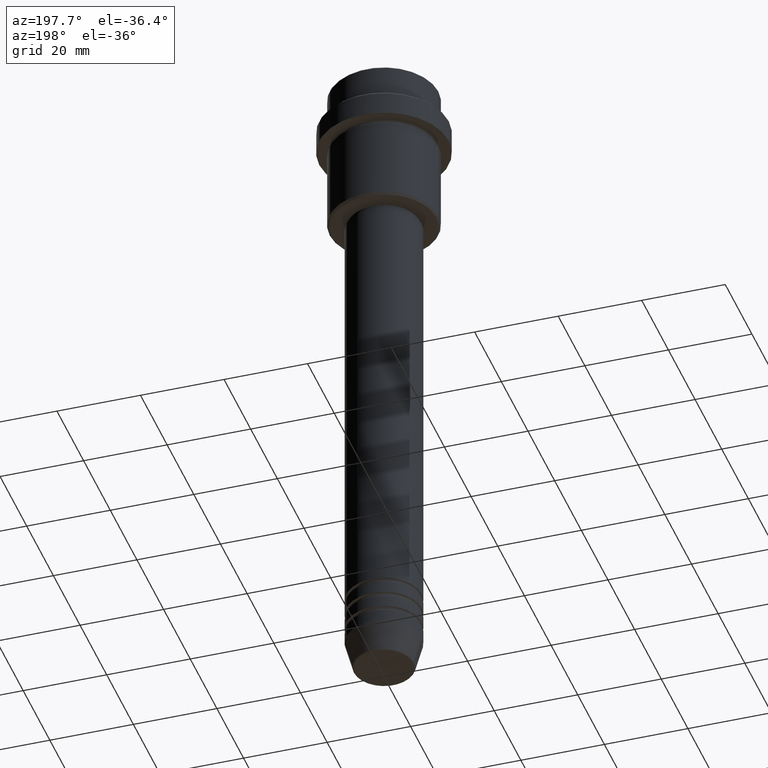
[diagram: clean part render]
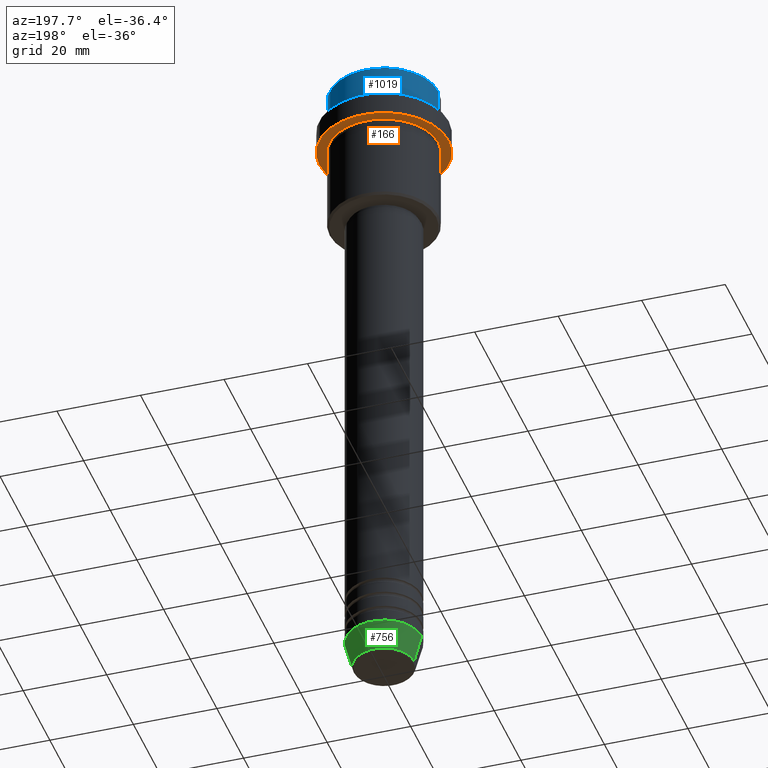
[diagram: same view with three faces highlighted in distinct colors, each labeled with its STEP entity id]
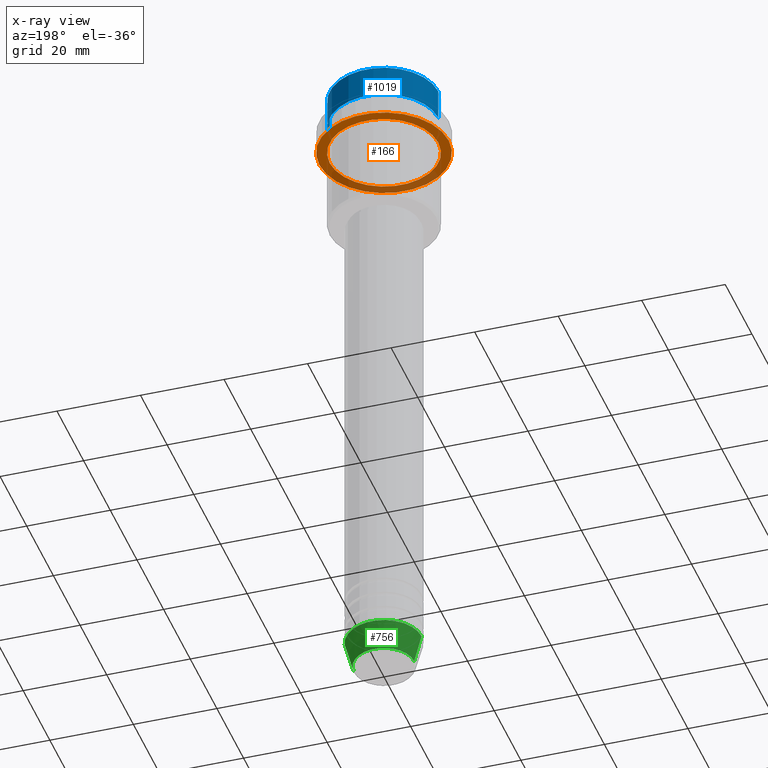
[diagram: x-ray of the same camera — body ghosted, the three highlighted faces saturated]
A machine part, auxiliary view with three faces highlighted in distinct colors.
The next image is the same camera in x-ray (body ghosted, the three faces saturated) — at least one of them is partly hidden behind the body in this view.
Their STEP definitions:

[orange] entity #166 — the highlighted planar face has unit normal (0, 0, -1).
#21 = CARTESIAN_POINT ( 'NONE',  ( 0.000000000000000000, 15.50000000000000000, -15.00000000000000000 ) ) ;
#29 = CIRCLE ( 'NONE', #822, 15.50000000000000000 ) ;
#45 = EDGE_CURVE ( 'NONE', #148, #1175, #29, .T. ) ;
#66 = VERTEX_POINT ( 'NONE', #1089 ) ;
#75 = ORIENTED_EDGE ( 'NONE', *, *, #939, .T. ) ;
#128 = EDGE_LOOP ( 'NONE', ( #75, #359 ) ) ;
#135 = CARTESIAN_POINT ( 'NONE',  ( -15.50000000000000000, 1.898202538678397557E-15, -15.00000000000000000 ) ) ;
#142 = ORIENTED_EDGE ( 'NONE', *, *, #516, .F. ) ;
#148 = VERTEX_POINT ( 'NONE', #135 ) ;
#159 = EDGE_LOOP ( 'NONE', ( #142, #187 ) ) ;
#166 = ADVANCED_FACE ( 'NONE', ( #990, #549 ), #663, .T. ) ;
#170 = DIRECTION ( 'NONE',  ( -1.000000000000000000, 0.000000000000000000, 0.000000000000000000 ) ) ;
#187 = ORIENTED_EDGE ( 'NONE', *, *, #45, .F. ) ;
#196 = AXIS2_PLACEMENT_3D ( 'NONE', #21, #1223, #785 ) ;
#200 = DIRECTION ( 'NONE',  ( -0.000000000000000000, -0.000000000000000000, 1.000000000000000000 ) ) ;
#243 = AXIS2_PLACEMENT_3D ( 'NONE', #303, #200, #529 ) ;
#260 = DIRECTION ( 'NONE',  ( -0.000000000000000000, -0.000000000000000000, 1.000000000000000000 ) ) ;
#284 = CARTESIAN_POINT ( 'NONE',  ( 0.000000000000000000, 0.000000000000000000, -15.00000000000000000 ) ) ;
#303 = CARTESIAN_POINT ( 'NONE',  ( 0.000000000000000000, 0.000000000000000000, -15.00000000000000000 ) ) ;
#341 = CARTESIAN_POINT ( 'NONE',  ( 15.50000000000000000, 0.000000000000000000, -15.00000000000000000 ) ) ;
#359 = ORIENTED_EDGE ( 'NONE', *, *, #434, .T. ) ;
#434 = EDGE_CURVE ( 'NONE', #66, #731, #1145, .T. ) ;
#496 = CARTESIAN_POINT ( 'NONE',  ( 0.000000000000000000, 0.000000000000000000, -15.00000000000000000 ) ) ;
#499 = DIRECTION ( 'NONE',  ( -0.000000000000000000, -0.000000000000000000, 1.000000000000000000 ) ) ;
#516 = EDGE_CURVE ( 'NONE', #1175, #148, #1106, .T. ) ;
#529 = DIRECTION ( 'NONE',  ( 1.000000000000000000, 0.000000000000000000, 0.000000000000000000 ) ) ;
#549 = FACE_OUTER_BOUND ( 'NONE', #159, .T. ) ;
#599 = CIRCLE ( 'NONE', #693, 12.99999999999999645 ) ;
#635 = CARTESIAN_POINT ( 'NONE',  ( -12.99999999999999645, 0.000000000000000000, -15.00000000000000000 ) ) ;
#663 = PLANE ( 'NONE',  #196 ) ;
#693 = AXIS2_PLACEMENT_3D ( 'NONE', #284, #499, #170 ) ;
#730 = DIRECTION ( 'NONE',  ( -0.000000000000000000, -0.000000000000000000, 1.000000000000000000 ) ) ;
#731 = VERTEX_POINT ( 'NONE', #635 ) ;
#785 = DIRECTION ( 'NONE',  ( -1.000000000000000000, 0.000000000000000000, -0.000000000000000000 ) ) ;
#822 = AXIS2_PLACEMENT_3D ( 'NONE', #1269, #730, #1291 ) ;
#939 = EDGE_CURVE ( 'NONE', #731, #66, #599, .T. ) ;
#990 = FACE_BOUND ( 'NONE', #128, .T. ) ;
#1025 = AXIS2_PLACEMENT_3D ( 'NONE', #496, #260, #1238 ) ;
#1089 = CARTESIAN_POINT ( 'NONE',  ( 12.99999999999999645, 1.592040838891558701E-15, -15.00000000000000000 ) ) ;
#1106 = CIRCLE ( 'NONE', #243, 15.50000000000000000 ) ;
#1145 = CIRCLE ( 'NONE', #1025, 12.99999999999999645 ) ;
#1175 = VERTEX_POINT ( 'NONE', #341 ) ;
#1223 = DIRECTION ( 'NONE',  ( 0.000000000000000000, 0.000000000000000000, -1.000000000000000000 ) ) ;
#1238 = DIRECTION ( 'NONE',  ( -1.000000000000000000, 0.000000000000000000, 0.000000000000000000 ) ) ;
#1269 = CARTESIAN_POINT ( 'NONE',  ( 0.000000000000000000, 0.000000000000000000, -15.00000000000000000 ) ) ;
#1291 = DIRECTION ( 'NONE',  ( 1.000000000000000000, 0.000000000000000000, 0.000000000000000000 ) ) ;

[blue] entity #1019 — the highlighted cylindrical surface (partial cylindrical patch) has radius 13 mm, axis along (-0, -0, 1).
#25 = ORIENTED_EDGE ( 'NONE', *, *, #505, .T. ) ;
#36 = CIRCLE ( 'NONE', #1215, 12.99999999999999822 ) ;
#77 = DIRECTION ( 'NONE',  ( 1.000000000000000000, 0.000000000000000000, 0.000000000000000000 ) ) ;
#81 = AXIS2_PLACEMENT_3D ( 'NONE', #86, #1034, #1393 ) ;
#86 = CARTESIAN_POINT ( 'NONE',  ( 0.000000000000000000, 0.000000000000000000, 0.000000000000000000 ) ) ;
#161 = EDGE_CURVE ( 'NONE', #1111, #1138, #909, .T. ) ;
#162 = LINE ( 'NONE', #602, #335 ) ;
#221 = DIRECTION ( 'NONE',  ( -0.000000000000000000, -0.000000000000000000, 1.000000000000000000 ) ) ;
#244 = DIRECTION ( 'NONE',  ( 0.000000000000000000, 0.000000000000000000, -1.000000000000000000 ) ) ;
#294 = EDGE_CURVE ( 'NONE', #907, #1138, #162, .T. ) ;
#295 = EDGE_LOOP ( 'NONE', ( #368, #25, #571, #859 ) ) ;
#335 = VECTOR ( 'NONE', #607, 1000.000000000000000 ) ;
#368 = ORIENTED_EDGE ( 'NONE', *, *, #924, .T. ) ;
#505 = EDGE_CURVE ( 'NONE', #1346, #1111, #1167, .T. ) ;
#571 = ORIENTED_EDGE ( 'NONE', *, *, #161, .T. ) ;
#581 = CARTESIAN_POINT ( 'NONE',  ( 12.99999999999999822, 0.000000000000000000, -7.999999999999998224 ) ) ;
#602 = CARTESIAN_POINT ( 'NONE',  ( 12.99999999999999822, 0.000000000000000000, 0.000000000000000000 ) ) ;
#606 = CYLINDRICAL_SURFACE ( 'NONE', #81, 12.99999999999999822 ) ;
#607 = DIRECTION ( 'NONE',  ( -0.000000000000000000, -0.000000000000000000, 1.000000000000000000 ) ) ;
#609 = CARTESIAN_POINT ( 'NONE',  ( 0.000000000000000000, 0.000000000000000000, -7.999999999999998224 ) ) ;
#659 = CARTESIAN_POINT ( 'NONE',  ( -12.99999999999999822, 1.592040838891558898E-15, -0.5000000000000038858 ) ) ;
#715 = CARTESIAN_POINT ( 'NONE',  ( -12.99999999999999822, 1.592040838891558898E-15, -7.999999999999998224 ) ) ;
#744 = CARTESIAN_POINT ( 'NONE',  ( -12.99999999999999822, 1.592040838891558898E-15, 0.000000000000000000 ) ) ;
#790 = CARTESIAN_POINT ( 'NONE',  ( 0.000000000000000000, 0.000000000000000000, -0.5000000000000038858 ) ) ;
#859 = ORIENTED_EDGE ( 'NONE', *, *, #294, .F. ) ;
#907 = VERTEX_POINT ( 'NONE', #581 ) ;
#909 = CIRCLE ( 'NONE', #1378, 12.99999999999999822 ) ;
#911 = VECTOR ( 'NONE', #221, 1000.000000000000000 ) ;
#924 = EDGE_CURVE ( 'NONE', #907, #1346, #36, .T. ) ;
#1019 = ADVANCED_FACE ( 'NONE', ( #1057 ), #606, .T. ) ;
#1034 = DIRECTION ( 'NONE',  ( -0.000000000000000000, -0.000000000000000000, 1.000000000000000000 ) ) ;
#1044 = DIRECTION ( 'NONE',  ( -0.000000000000000000, -0.000000000000000000, 1.000000000000000000 ) ) ;
#1057 = FACE_OUTER_BOUND ( 'NONE', #295, .T. ) ;
#1090 = CARTESIAN_POINT ( 'NONE',  ( 12.99999999999999822, 0.000000000000000000, -0.5000000000000038858 ) ) ;
#1111 = VERTEX_POINT ( 'NONE', #659 ) ;
#1116 = DIRECTION ( 'NONE',  ( 1.000000000000000000, 0.000000000000000000, 0.000000000000000000 ) ) ;
#1138 = VERTEX_POINT ( 'NONE', #1090 ) ;
#1167 = LINE ( 'NONE', #744, #911 ) ;
#1215 = AXIS2_PLACEMENT_3D ( 'NONE', #609, #1044, #77 ) ;
#1346 = VERTEX_POINT ( 'NONE', #715 ) ;
#1378 = AXIS2_PLACEMENT_3D ( 'NONE', #790, #244, #1116 ) ;
#1393 = DIRECTION ( 'NONE',  ( 1.000000000000000000, 0.000000000000000000, 0.000000000000000000 ) ) ;

[green] entity #756 — the highlighted conical surface has half-angle 15 deg.
#10 = CARTESIAN_POINT ( 'NONE',  ( -9.000000000000000000, 1.102182119232617714E-15, -154.0000000000000000 ) ) ;
#35 = CONICAL_SURFACE ( 'NONE', #535, 9.000000000000000000, 0.2617993877991500740 ) ;
#63 = EDGE_CURVE ( 'NONE', #695, #1134, #847, .T. ) ;
#67 = LINE ( 'NONE', #157, #645 ) ;
#157 = CARTESIAN_POINT ( 'NONE',  ( 9.000000000000000000, 0.000000000000000000, -154.0000000000000000 ) ) ;
#178 = EDGE_CURVE ( 'NONE', #1134, #1218, #766, .T. ) ;
#193 = EDGE_LOOP ( 'NONE', ( #829, #463, #818, #705 ) ) ;
#321 = EDGE_CURVE ( 'NONE', #695, #591, #67, .T. ) ;
#353 = EDGE_CURVE ( 'NONE', #591, #1218, #1254, .T. ) ;
#415 = DIRECTION ( 'NONE',  ( 1.000000000000000000, 0.000000000000000000, 0.000000000000000000 ) ) ;
#428 = CARTESIAN_POINT ( 'NONE',  ( 9.000000000000000000, 0.000000000000000000, -154.0000000000000000 ) ) ;
#461 = DIRECTION ( 'NONE',  ( -0.2588190451025213501, 3.169619151431772337E-17, 0.9659258262890680902 ) ) ;
#463 = ORIENTED_EDGE ( 'NONE', *, *, #178, .T. ) ;
#469 = CARTESIAN_POINT ( 'NONE',  ( -9.000000000000000000, 1.102182119232617714E-15, -154.0000000000000000 ) ) ;
#535 = AXIS2_PLACEMENT_3D ( 'NONE', #946, #1395, #1066 ) ;
#591 = VERTEX_POINT ( 'NONE', #428 ) ;
#615 = AXIS2_PLACEMENT_3D ( 'NONE', #722, #713, #1368 ) ;
#629 = FACE_OUTER_BOUND ( 'NONE', #193, .T. ) ;
#645 = VECTOR ( 'NONE', #1035, 1000.000000000000000 ) ;
#695 = VERTEX_POINT ( 'NONE', #1278 ) ;
#705 = ORIENTED_EDGE ( 'NONE', *, *, #321, .F. ) ;
#713 = DIRECTION ( 'NONE',  ( -0.000000000000000000, -0.000000000000000000, 1.000000000000000000 ) ) ;
#722 = CARTESIAN_POINT ( 'NONE',  ( 0.000000000000000000, 0.000000000000000000, -154.0000000000000000 ) ) ;
#756 = ADVANCED_FACE ( 'NONE', ( #629 ), #35, .T. ) ;
#766 = LINE ( 'NONE', #10, #848 ) ;
#818 = ORIENTED_EDGE ( 'NONE', *, *, #353, .F. ) ;
#829 = ORIENTED_EDGE ( 'NONE', *, *, #63, .T. ) ;
#847 = CIRCLE ( 'NONE', #1232, 7.223655072137196598 ) ;
#848 = VECTOR ( 'NONE', #461, 1000.000000000000000 ) ;
#946 = CARTESIAN_POINT ( 'NONE',  ( 0.000000000000000000, 0.000000000000000000, -154.0000000000000000 ) ) ;
#1035 = DIRECTION ( 'NONE',  ( 0.2588190451025213501, 0.000000000000000000, 0.9659258262890680902 ) ) ;
#1065 = CARTESIAN_POINT ( 'NONE',  ( -7.223655072137197486, 9.934123627281769054E-16, -160.6294095225512422 ) ) ;
#1066 = DIRECTION ( 'NONE',  ( 1.000000000000000000, 0.000000000000000000, 0.000000000000000000 ) ) ;
#1079 = DIRECTION ( 'NONE',  ( -0.000000000000000000, -0.000000000000000000, 1.000000000000000000 ) ) ;
#1134 = VERTEX_POINT ( 'NONE', #1065 ) ;
#1218 = VERTEX_POINT ( 'NONE', #469 ) ;
#1232 = AXIS2_PLACEMENT_3D ( 'NONE', #1400, #1079, #415 ) ;
#1254 = CIRCLE ( 'NONE', #615, 9.000000000000000000 ) ;
#1278 = CARTESIAN_POINT ( 'NONE',  ( 7.223655072137196598, 0.000000000000000000, -160.6294095225512422 ) ) ;
#1368 = DIRECTION ( 'NONE',  ( 1.000000000000000000, 0.000000000000000000, 0.000000000000000000 ) ) ;
#1395 = DIRECTION ( 'NONE',  ( -0.000000000000000000, -0.000000000000000000, 1.000000000000000000 ) ) ;
#1400 = CARTESIAN_POINT ( 'NONE',  ( 0.000000000000000000, 0.000000000000000000, -160.6294095225512422 ) ) ;